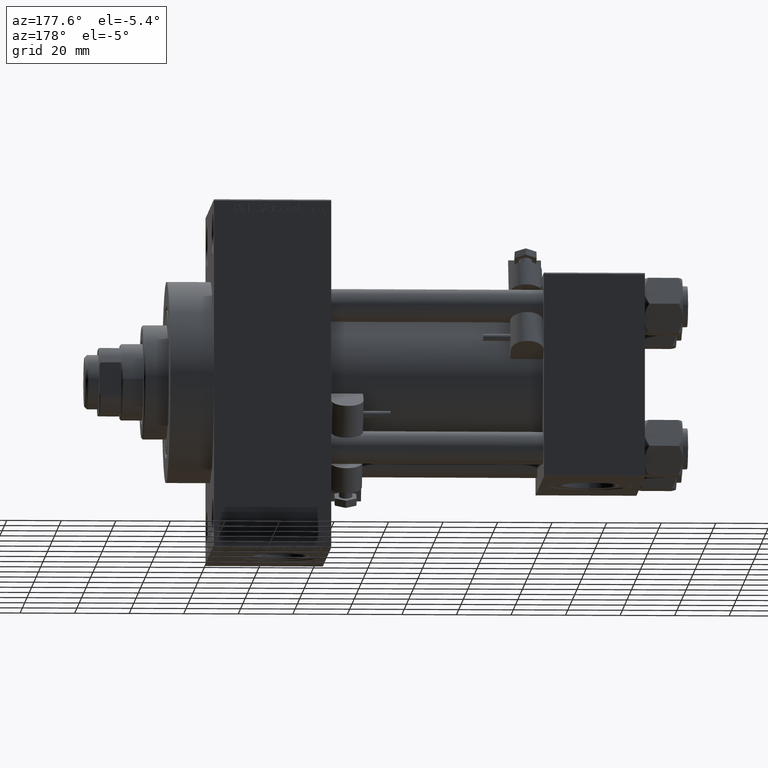
[diagram: clean part render]
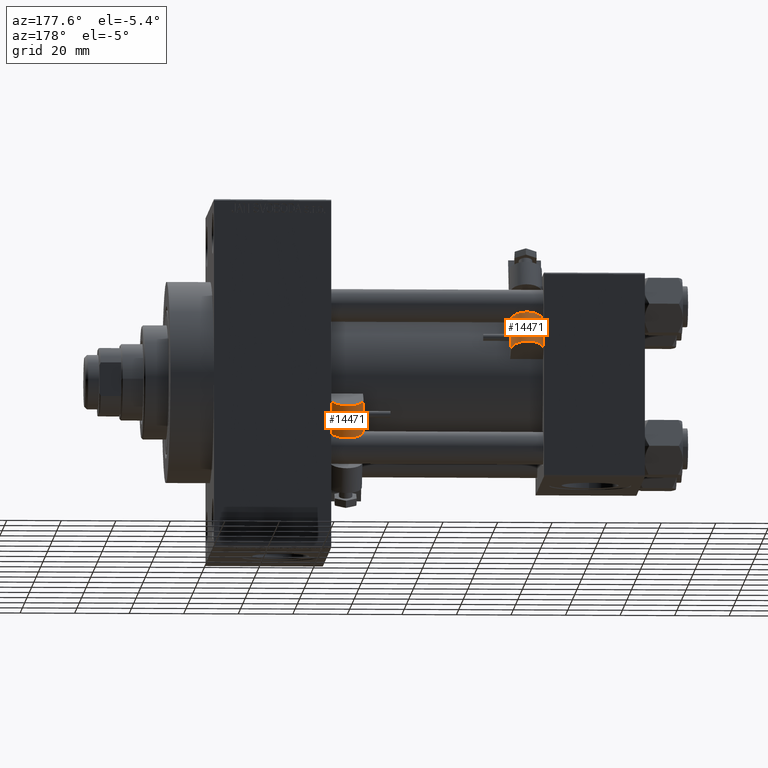
[diagram: same view with one multi-face feature highlighted, each face labeled with its STEP entity id]
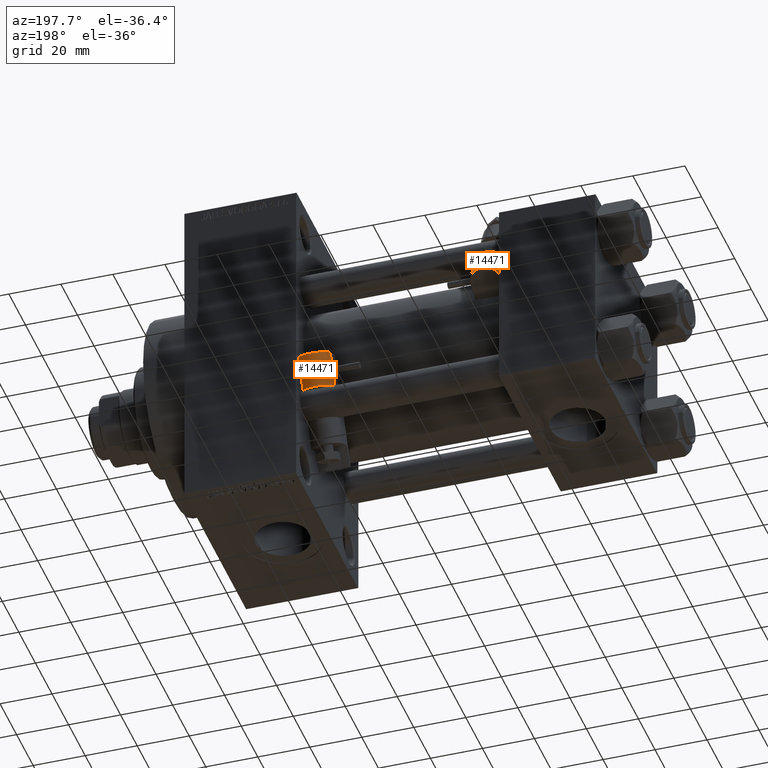
[diagram: same view with one multi-face feature highlighted, each face labeled with its STEP entity id]
A machine part, auxiliary view. The highlighted faces form ONE feature: a constant-radius fillet chain: 2 tangent blend faces with common blend radius 6 mm. The faces share edges in the B-rep.
A second angle (auxiliary view) of the same feature is appended — it is thin or edge-on in the first view.
Their STEP definitions:
[1] entity #14471 (Cylinder):
#882 = LINE ( 'NONE', #8473, #44662 ) ;
#1130 = DIRECTION ( 'NONE',  ( -1.000000000000000000, -0.000000000000000000, -0.000000000000000000 ) ) ;
#1412 = VERTEX_POINT ( 'NONE', #31080 ) ;
#1626 = CARTESIAN_POINT ( 'NONE',  ( 34.24000000000000909, 6.499999999999999112, 6.000000000000006217 ) ) ;
#2721 = CARTESIAN_POINT ( 'NONE',  ( 34.24000000000000909, 6.499999999999999112, 6.000000000000006217 ) ) ;
#3038 = CARTESIAN_POINT ( 'NONE',  ( 21.73306765392754869, 6.666665656712553734, -5.999999999999997335 ) ) ;
#3125 = VERTEX_POINT ( 'NONE', #44097 ) ;
#5328 = CYLINDRICAL_SURFACE ( 'NONE', #17222, 6.000000000000002665 ) ;
#6667 = EDGE_CURVE ( 'NONE', #1412, #8438, #48101, .T. ) ;
#6793 = CARTESIAN_POINT ( 'NONE',  ( 21.74000000000000199, 7.000000000000000000, 5.979130371550724021 ) ) ;
#7010 = VERTEX_POINT ( 'NONE', #2721 ) ;
#7145 = AXIS2_PLACEMENT_3D ( 'NONE', #9518, #12929, #41166 ) ;
#7486 = CARTESIAN_POINT ( 'NONE',  ( 21.71913037155070469, 6.500000000000000000, -5.999999999999980460 ) ) ;
#8116 = EDGE_CURVE ( 'NONE', #49014, #1412, #882, .T. ) ;
#8438 = VERTEX_POINT ( 'NONE', #23840 ) ;
#8473 = CARTESIAN_POINT ( 'NONE',  ( 34.24000000000000909, 6.500000000000000000, -5.999999999999980460 ) ) ;
#8933 = ORIENTED_EDGE ( 'NONE', *, *, #15880, .T. ) ;
#9257 = FACE_OUTER_BOUND ( 'NONE', #43135, .T. ) ;
#9310 = DIRECTION ( 'NONE',  ( 1.000000000000000000, 0.000000000000000000, 0.000000000000000000 ) ) ;
#9518 = CARTESIAN_POINT ( 'NONE',  ( 21.74000000000000199, 6.500000000000000000, 2.255140518769849223E-14 ) ) ;
#9743 = DIRECTION ( 'NONE',  ( -1.000000000000000000, -0.000000000000000000, -0.000000000000000000 ) ) ;
#11136 = CARTESIAN_POINT ( 'NONE',  ( 21.74000000000000554, 6.833334343287445378, -5.993067653927525384 ) ) ;
#12315 = EDGE_CURVE ( 'NONE', #8438, #49382, #25504, .T. ) ;
#12929 = DIRECTION ( 'NONE',  ( 1.000000000000000000, 0.000000000000000000, 0.000000000000000000 ) ) ;
#14471 = ADVANCED_FACE ( 'NONE', ( #9257 ), #5328, .T. ) ;
#15880 = EDGE_CURVE ( 'NONE', #49382, #3125, #16665, .T. ) ;
#16665 = B_SPLINE_CURVE_WITH_KNOTS ( 'NONE', 3,
 ( #6793, #22742, #42613, #34268 ),
 .UNSPECIFIED., .F., .F.,
 ( 4, 4 ),
 ( 0.000000000000000000, 0.0005008703253170666272 ),
 .UNSPECIFIED. ) ;
#17093 = DIRECTION ( 'NONE',  ( -1.000000000000000000, -0.000000000000000000, -0.000000000000000000 ) ) ;
#17222 = AXIS2_PLACEMENT_3D ( 'NONE', #37239, #17093, #37999 ) ;
#17521 = CARTESIAN_POINT ( 'NONE',  ( 21.74000000000000199, 7.000000000000000000, 5.979130371550724021 ) ) ;
#17959 = ORIENTED_EDGE ( 'NONE', *, *, #18380, .F. ) ;
#18380 = EDGE_CURVE ( 'NONE', #49014, #7010, #40780, .T. ) ;
#19040 = AXIS2_PLACEMENT_3D ( 'NONE', #45384, #9310, #48810 ) ;
#22742 = CARTESIAN_POINT ( 'NONE',  ( 21.74000000000000199, 6.833334343287446266, 5.993067653927570682 ) ) ;
#23840 = CARTESIAN_POINT ( 'NONE',  ( 21.74000000000000199, 7.000000000000000000, -5.979130371550678724 ) ) ;
#25504 = CIRCLE ( 'NONE', #7145, 6.000000000000002665 ) ;
#27041 = ORIENTED_EDGE ( 'NONE', *, *, #8116, .T. ) ;
#29488 = EDGE_CURVE ( 'NONE', #7010, #3125, #42409, .T. ) ;
#31080 = CARTESIAN_POINT ( 'NONE',  ( 21.71913037155070469, 6.500000000000000000, -5.999999999999980460 ) ) ;
#33809 = ORIENTED_EDGE ( 'NONE', *, *, #6667, .T. ) ;
#34268 = CARTESIAN_POINT ( 'NONE',  ( 21.71913037155070469, 6.499999999999999112, 6.000000000000006217 ) ) ;
#36894 = VECTOR ( 'NONE', #9743, 1000.000000000000000 ) ;
#37239 = CARTESIAN_POINT ( 'NONE',  ( 34.24000000000000909, 6.500000000000000000, 2.255140518769849223E-14 ) ) ;
#37999 = DIRECTION ( 'NONE',  ( 0.000000000000000000, 0.000000000000000000, 1.000000000000000000 ) ) ;
#39397 = CARTESIAN_POINT ( 'NONE',  ( 21.74000000000000199, 7.000000000000000000, -5.979130371550678724 ) ) ;
#40780 = CIRCLE ( 'NONE', #19040, 6.000000000000002665 ) ;
#41166 = DIRECTION ( 'NONE',  ( 0.000000000000000000, 0.000000000000000000, -1.000000000000000000 ) ) ;
#42409 = LINE ( 'NONE', #1626, #36894 ) ;
#42487 = ORIENTED_EDGE ( 'NONE', *, *, #29488, .F. ) ;
#42613 = CARTESIAN_POINT ( 'NONE',  ( 21.73306765392754869, 6.666665656712551957, 6.000000000000024869 ) ) ;
#43135 = EDGE_LOOP ( 'NONE', ( #27041, #33809, #48196, #8933, #42487, #17959 ) ) ;
#44097 = CARTESIAN_POINT ( 'NONE',  ( 21.71913037155070469, 6.499999999999999112, 6.000000000000006217 ) ) ;
#44662 = VECTOR ( 'NONE', #1130, 1000.000000000000000 ) ;
#45384 = CARTESIAN_POINT ( 'NONE',  ( 34.24000000000000909, 6.500000000000000000, 2.255140518769849223E-14 ) ) ;
#46457 = CARTESIAN_POINT ( 'NONE',  ( 34.24000000000000909, 6.500000000000000000, -5.999999999999980460 ) ) ;
#48101 = B_SPLINE_CURVE_WITH_KNOTS ( 'NONE', 3,
 ( #7486, #3038, #11136, #39397 ),
 .UNSPECIFIED., .F., .F.,
 ( 4, 4 ),
 ( 8.673617379884035472E-19, 0.0005008703253170674946 ),
 .UNSPECIFIED. ) ;
#48196 = ORIENTED_EDGE ( 'NONE', *, *, #12315, .T. ) ;
#48810 = DIRECTION ( 'NONE',  ( 0.000000000000000000, 0.000000000000000000, -1.000000000000000000 ) ) ;
#49014 = VERTEX_POINT ( 'NONE', #46457 ) ;
#49382 = VERTEX_POINT ( 'NONE', #17521 ) ;
[2] entity #14471 (Cylinder):
#882 = LINE ( 'NONE', #8473, #44662 ) ;
#1130 = DIRECTION ( 'NONE',  ( -1.000000000000000000, -0.000000000000000000, -0.000000000000000000 ) ) ;
#1412 = VERTEX_POINT ( 'NONE', #31080 ) ;
#1626 = CARTESIAN_POINT ( 'NONE',  ( 34.24000000000000909, 6.499999999999999112, 6.000000000000006217 ) ) ;
#2721 = CARTESIAN_POINT ( 'NONE',  ( 34.24000000000000909, 6.499999999999999112, 6.000000000000006217 ) ) ;
#3038 = CARTESIAN_POINT ( 'NONE',  ( 21.73306765392754869, 6.666665656712553734, -5.999999999999997335 ) ) ;
#3125 = VERTEX_POINT ( 'NONE', #44097 ) ;
#5328 = CYLINDRICAL_SURFACE ( 'NONE', #17222, 6.000000000000002665 ) ;
#6667 = EDGE_CURVE ( 'NONE', #1412, #8438, #48101, .T. ) ;
#6793 = CARTESIAN_POINT ( 'NONE',  ( 21.74000000000000199, 7.000000000000000000, 5.979130371550724021 ) ) ;
#7010 = VERTEX_POINT ( 'NONE', #2721 ) ;
#7145 = AXIS2_PLACEMENT_3D ( 'NONE', #9518, #12929, #41166 ) ;
#7486 = CARTESIAN_POINT ( 'NONE',  ( 21.71913037155070469, 6.500000000000000000, -5.999999999999980460 ) ) ;
#8116 = EDGE_CURVE ( 'NONE', #49014, #1412, #882, .T. ) ;
#8438 = VERTEX_POINT ( 'NONE', #23840 ) ;
#8473 = CARTESIAN_POINT ( 'NONE',  ( 34.24000000000000909, 6.500000000000000000, -5.999999999999980460 ) ) ;
#8933 = ORIENTED_EDGE ( 'NONE', *, *, #15880, .T. ) ;
#9257 = FACE_OUTER_BOUND ( 'NONE', #43135, .T. ) ;
#9310 = DIRECTION ( 'NONE',  ( 1.000000000000000000, 0.000000000000000000, 0.000000000000000000 ) ) ;
#9518 = CARTESIAN_POINT ( 'NONE',  ( 21.74000000000000199, 6.500000000000000000, 2.255140518769849223E-14 ) ) ;
#9743 = DIRECTION ( 'NONE',  ( -1.000000000000000000, -0.000000000000000000, -0.000000000000000000 ) ) ;
#11136 = CARTESIAN_POINT ( 'NONE',  ( 21.74000000000000554, 6.833334343287445378, -5.993067653927525384 ) ) ;
#12315 = EDGE_CURVE ( 'NONE', #8438, #49382, #25504, .T. ) ;
#12929 = DIRECTION ( 'NONE',  ( 1.000000000000000000, 0.000000000000000000, 0.000000000000000000 ) ) ;
#14471 = ADVANCED_FACE ( 'NONE', ( #9257 ), #5328, .T. ) ;
#15880 = EDGE_CURVE ( 'NONE', #49382, #3125, #16665, .T. ) ;
#16665 = B_SPLINE_CURVE_WITH_KNOTS ( 'NONE', 3,
 ( #6793, #22742, #42613, #34268 ),
 .UNSPECIFIED., .F., .F.,
 ( 4, 4 ),
 ( 0.000000000000000000, 0.0005008703253170666272 ),
 .UNSPECIFIED. ) ;
#17093 = DIRECTION ( 'NONE',  ( -1.000000000000000000, -0.000000000000000000, -0.000000000000000000 ) ) ;
#17222 = AXIS2_PLACEMENT_3D ( 'NONE', #37239, #17093, #37999 ) ;
#17521 = CARTESIAN_POINT ( 'NONE',  ( 21.74000000000000199, 7.000000000000000000, 5.979130371550724021 ) ) ;
#17959 = ORIENTED_EDGE ( 'NONE', *, *, #18380, .F. ) ;
#18380 = EDGE_CURVE ( 'NONE', #49014, #7010, #40780, .T. ) ;
#19040 = AXIS2_PLACEMENT_3D ( 'NONE', #45384, #9310, #48810 ) ;
#22742 = CARTESIAN_POINT ( 'NONE',  ( 21.74000000000000199, 6.833334343287446266, 5.993067653927570682 ) ) ;
#23840 = CARTESIAN_POINT ( 'NONE',  ( 21.74000000000000199, 7.000000000000000000, -5.979130371550678724 ) ) ;
#25504 = CIRCLE ( 'NONE', #7145, 6.000000000000002665 ) ;
#27041 = ORIENTED_EDGE ( 'NONE', *, *, #8116, .T. ) ;
#29488 = EDGE_CURVE ( 'NONE', #7010, #3125, #42409, .T. ) ;
#31080 = CARTESIAN_POINT ( 'NONE',  ( 21.71913037155070469, 6.500000000000000000, -5.999999999999980460 ) ) ;
#33809 = ORIENTED_EDGE ( 'NONE', *, *, #6667, .T. ) ;
#34268 = CARTESIAN_POINT ( 'NONE',  ( 21.71913037155070469, 6.499999999999999112, 6.000000000000006217 ) ) ;
#36894 = VECTOR ( 'NONE', #9743, 1000.000000000000000 ) ;
#37239 = CARTESIAN_POINT ( 'NONE',  ( 34.24000000000000909, 6.500000000000000000, 2.255140518769849223E-14 ) ) ;
#37999 = DIRECTION ( 'NONE',  ( 0.000000000000000000, 0.000000000000000000, 1.000000000000000000 ) ) ;
#39397 = CARTESIAN_POINT ( 'NONE',  ( 21.74000000000000199, 7.000000000000000000, -5.979130371550678724 ) ) ;
#40780 = CIRCLE ( 'NONE', #19040, 6.000000000000002665 ) ;
#41166 = DIRECTION ( 'NONE',  ( 0.000000000000000000, 0.000000000000000000, -1.000000000000000000 ) ) ;
#42409 = LINE ( 'NONE', #1626, #36894 ) ;
#42487 = ORIENTED_EDGE ( 'NONE', *, *, #29488, .F. ) ;
#42613 = CARTESIAN_POINT ( 'NONE',  ( 21.73306765392754869, 6.666665656712551957, 6.000000000000024869 ) ) ;
#43135 = EDGE_LOOP ( 'NONE', ( #27041, #33809, #48196, #8933, #42487, #17959 ) ) ;
#44097 = CARTESIAN_POINT ( 'NONE',  ( 21.71913037155070469, 6.499999999999999112, 6.000000000000006217 ) ) ;
#44662 = VECTOR ( 'NONE', #1130, 1000.000000000000000 ) ;
#45384 = CARTESIAN_POINT ( 'NONE',  ( 34.24000000000000909, 6.500000000000000000, 2.255140518769849223E-14 ) ) ;
#46457 = CARTESIAN_POINT ( 'NONE',  ( 34.24000000000000909, 6.500000000000000000, -5.999999999999980460 ) ) ;
#48101 = B_SPLINE_CURVE_WITH_KNOTS ( 'NONE', 3,
 ( #7486, #3038, #11136, #39397 ),
 .UNSPECIFIED., .F., .F.,
 ( 4, 4 ),
 ( 8.673617379884035472E-19, 0.0005008703253170674946 ),
 .UNSPECIFIED. ) ;
#48196 = ORIENTED_EDGE ( 'NONE', *, *, #12315, .T. ) ;
#48810 = DIRECTION ( 'NONE',  ( 0.000000000000000000, 0.000000000000000000, -1.000000000000000000 ) ) ;
#49014 = VERTEX_POINT ( 'NONE', #46457 ) ;
#49382 = VERTEX_POINT ( 'NONE', #17521 ) ;